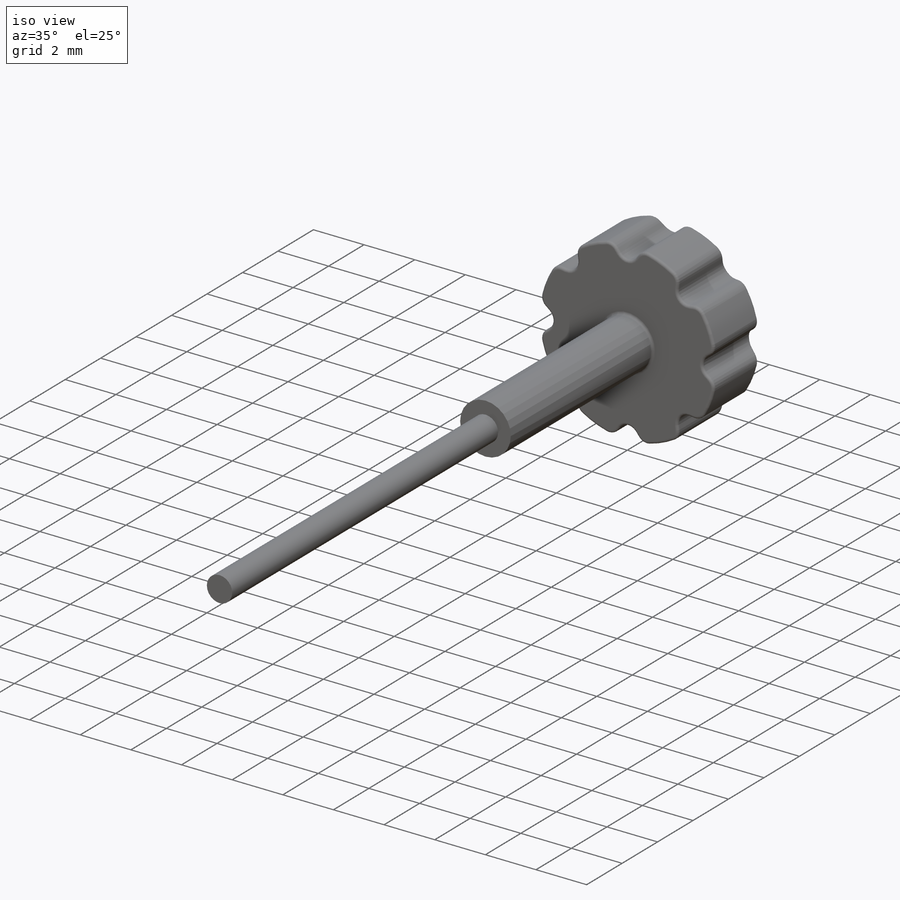
[diagram: iso view]
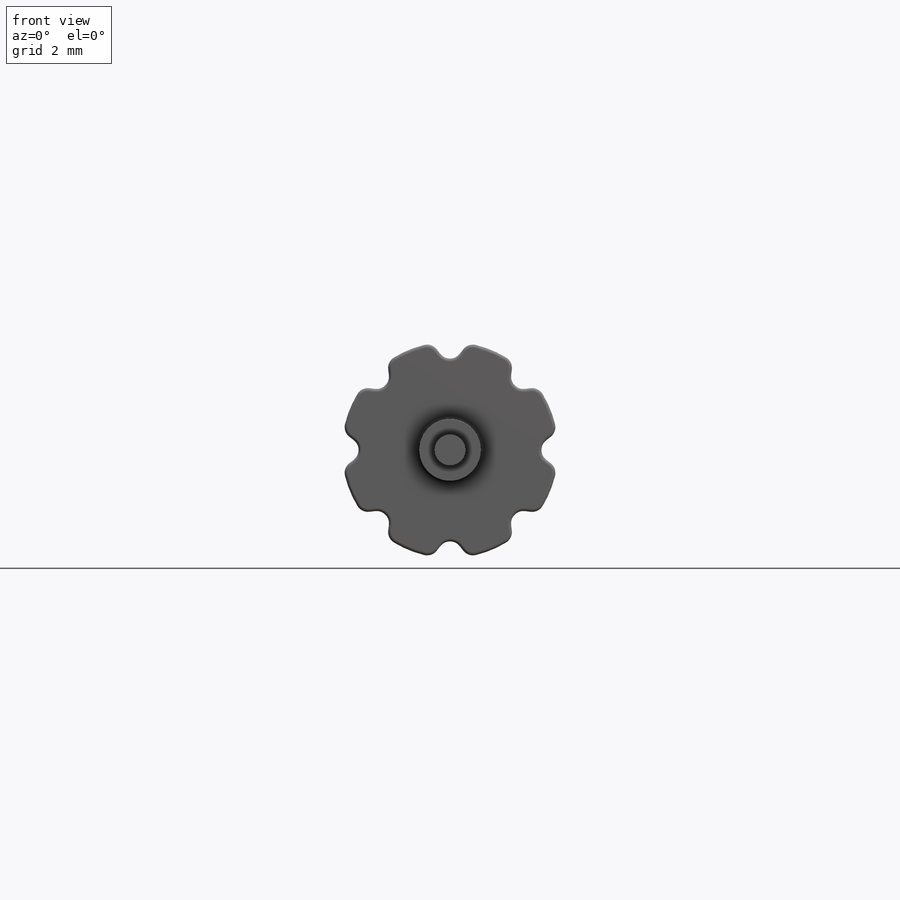
[diagram: front view]
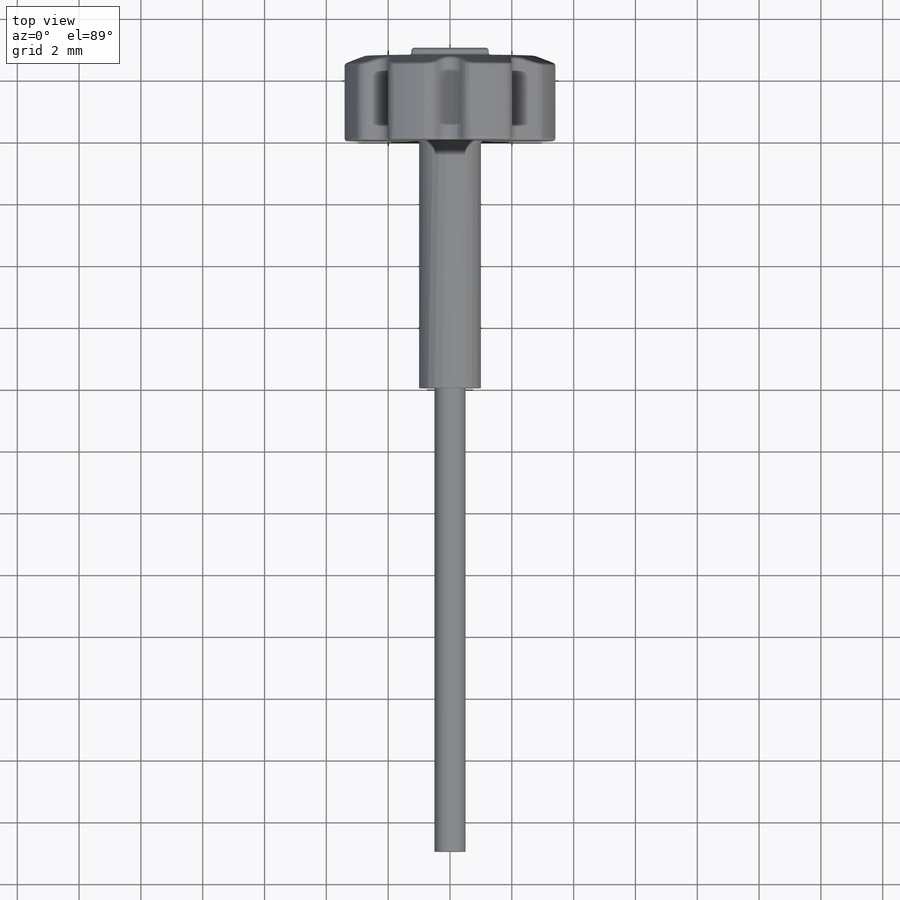
[diagram: top view]
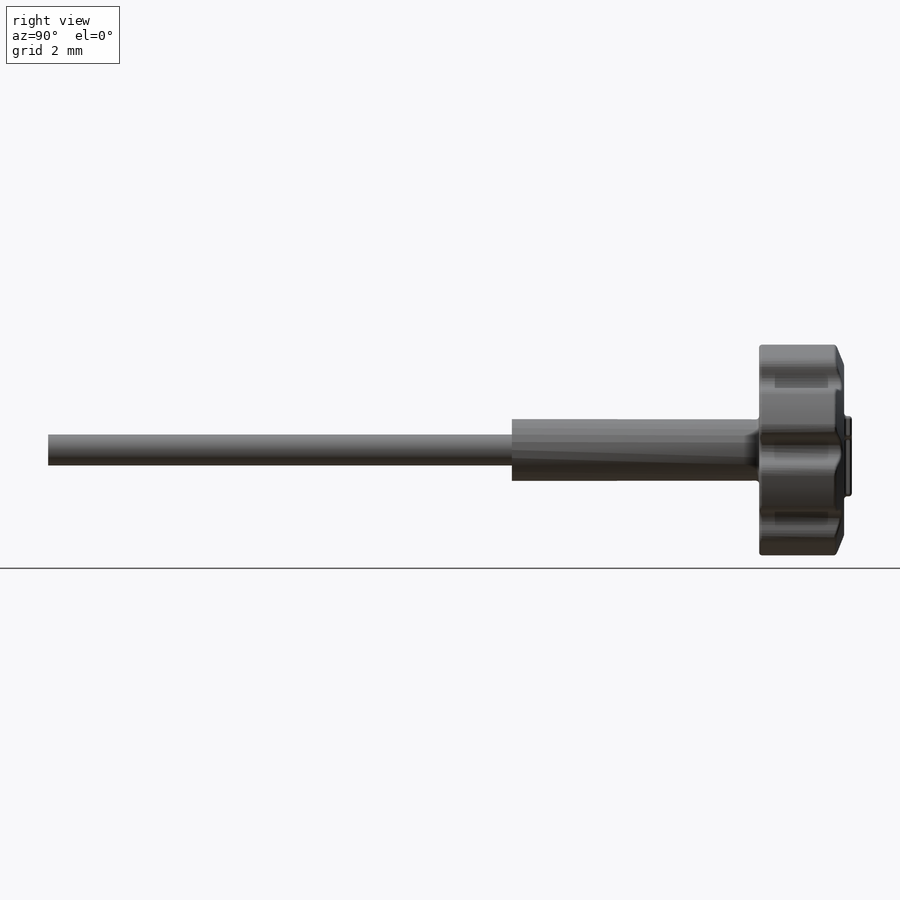
[diagram: right view]
SOLIDWORKS PART (.sldprt)
format: sldprt  version: not decoded by parser v0  size: 714,240 bytes
history: native  units: mm
features: sketch x5, extrude x4, fillet x4, material x1, chamfer x1, cut_extrude x1, pattern_circular x1 (+11 scaffold rows collapsed)
feature tree (28):
  scaffold x11  (default folders/planes/origin — collapsed)
  material  "Material <not specified>"
  sketch  "Sketch1"  dims[D1=2.0mm]
  extrude  "Boss-Extrude1"  Depth=8mm
  sketch  "Sketch2"  dims[D1=1.0mm]
  extrude  "Boss-Extrude2"  Depth=15mm
  sketch  "Sketch3"  dims[D1=7.0mm]
  extrude  "Boss-Extrude3"  Depth=2.75mm
  chamfer  "Chamfer1"  Distance=0.75mm Angle=20deg
  sketch  "Sketch4"  dims[D1=2.7mm D2=4.0mm D3=1.0mm D4=1.0mm]
  cut_extrude  "Cut-Extrude1"  Depth=2.75mm
  pattern_circular  "CirPattern1"  Count=8  [1 undecoded]
  fillet  "Fillet1"  Radius=0.4mm
  fillet  "Fillet2"  Radius=0.4mm
  fillet  "Fillet3"  Radius=0.1mm
  sketch  "Sketch5"  dims[D1=0.7mm D2=0.7mm D3=0.35mm D4=1.5mm D5=2.5mm D6=1.25mm D7=0.4mm]
  extrude  "Boss-Extrude4"  Depth=0.25mm
  fillet  "Fillet4"  Radius=0.1mm
decode coverage: 16 of 16 modeling features carry decoded parameters
note: 1 parameter value undecoded
note: suppression state not decoded; provenance and decode notes live in map.json
